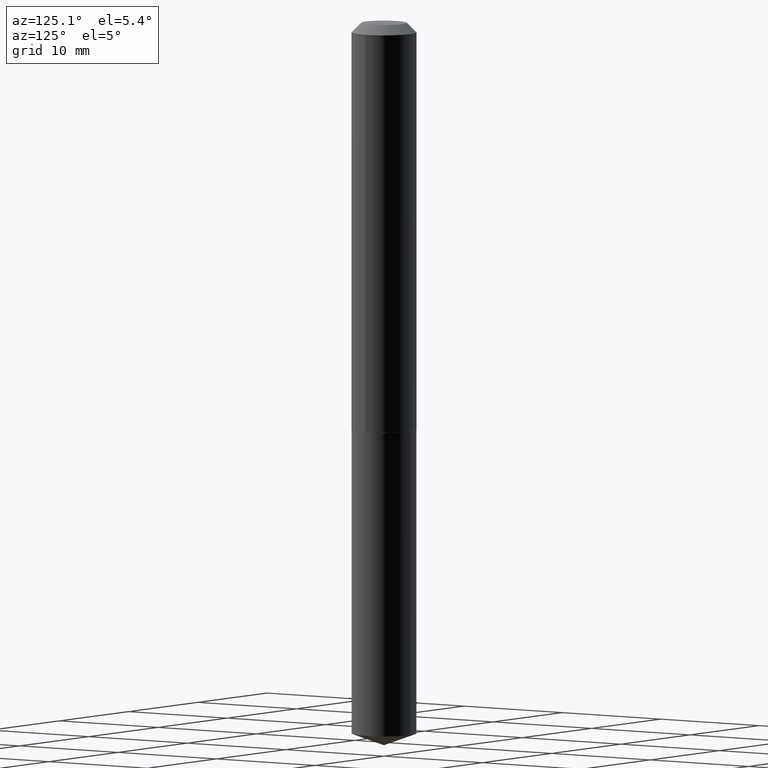
[diagram: clean part render]
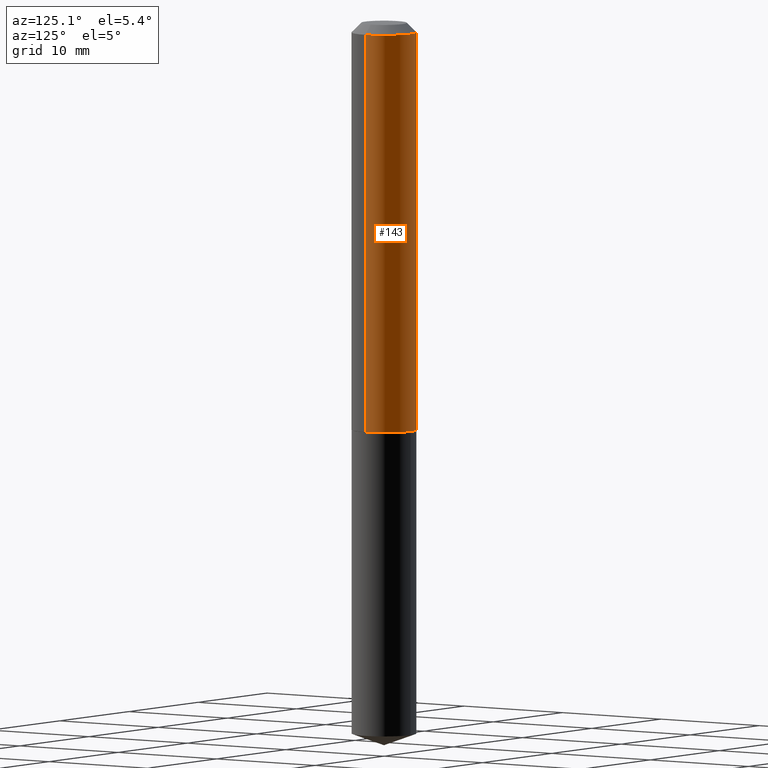
[diagram: same view with one face highlighted and labeled with its STEP entity id]
A machine part, auxiliary view. The second image highlights one B-rep face of the part: STEP entity #143.
In plain terms, the highlighted cylindrical surface (edge-blend (fillet) strip) has radius 2.7051 mm, axis along (-0, 0, 1).
Its self-contained STEP definition (entity closure, byte-faithful):
#23 = CARTESIAN_POINT ( 'NONE',  ( 3.270814528272620647E-29, -4.669856290702708218E-15, -1.337500000000000133 ) ) ;
#25 = DIRECTION ( 'NONE',  ( -2.445468806185136877E-29, 3.491481338843145188E-15, 1.000000000000000000 ) ) ;
#28 = DIRECTION ( 'NONE',  ( -2.445468806185136597E-29, 3.491481338843145583E-15, 1.000000000000000000 ) ) ;
#58 = CARTESIAN_POINT ( 'NONE',  ( 0.000000000000000000, 0.000000000000000000, 0.000000000000000000 ) ) ;
#59 = CARTESIAN_POINT ( 'NONE',  ( 7.642090019328602662E-31, -1.091087918388490267E-16, -0.03125000000000020817 ) ) ;
#61 = AXIS2_PLACEMENT_3D ( 'NONE', #58, #28, #89 ) ;
#66 = VECTOR ( 'NONE', #25, 39.37007874015748143 ) ;
#71 = VERTEX_POINT ( 'NONE', #292 ) ;
#89 = DIRECTION ( 'NONE',  ( 1.000000000000000000, -6.982962677686267499E-15, 4.876176775795935232E-29 ) ) ;
#90 = EDGE_CURVE ( 'NONE', #145, #361, #222, .T. ) ;
#101 = EDGE_CURVE ( 'NONE', #145, #306, #115, .T. ) ;
#111 = EDGE_CURVE ( 'NONE', #306, #71, #178, .T. ) ;
#115 = LINE ( 'NONE', #390, #212 ) ;
#116 = DIRECTION ( 'NONE',  ( -2.445468806185136597E-29, 3.491481338843145583E-15, 1.000000000000000000 ) ) ;
#117 = CARTESIAN_POINT ( 'NONE',  ( -0.1065000000000001640, -3.913128277118200453E-15, -1.337500000000000133 ) ) ;
#122 = ORIENTED_EDGE ( 'NONE', *, *, #111, .F. ) ;
#131 = ORIENTED_EDGE ( 'NONE', *, *, #101, .F. ) ;
#133 = ORIENTED_EDGE ( 'NONE', *, *, #90, .T. ) ;
#139 = FACE_OUTER_BOUND ( 'NONE', #149, .T. ) ;
#143 = ADVANCED_FACE ( 'NONE', ( #139 ), #266, .T. ) ;
#145 = VERTEX_POINT ( 'NONE', #271 ) ;
#149 = EDGE_LOOP ( 'NONE', ( #133, #211, #122, #131 ) ) ;
#167 = CARTESIAN_POINT ( 'NONE',  ( 0.1065000000000000113, -8.527943170124366394E-16, -0.03125000000000020817 ) ) ;
#178 = CIRCLE ( 'NONE', #320, 0.1065000000000000113 ) ;
#195 = LINE ( 'NONE', #296, #66 ) ;
#204 = DIRECTION ( 'NONE',  ( -2.445468806185136597E-29, 3.491481338843145583E-15, 1.000000000000000000 ) ) ;
#211 = ORIENTED_EDGE ( 'NONE', *, *, #336, .T. ) ;
#212 = VECTOR ( 'NONE', #359, 39.37007874015748143 ) ;
#222 = CIRCLE ( 'NONE', #341, 0.1065000000000001640 ) ;
#266 = CYLINDRICAL_SURFACE ( 'NONE', #61, 0.1065000000000000807 ) ;
#271 = CARTESIAN_POINT ( 'NONE',  ( 0.1065000000000001640, -5.413541815876296348E-15, -1.337500000000000133 ) ) ;
#292 = CARTESIAN_POINT ( 'NONE',  ( -0.1065000000000000113, -1.632754527686270697E-15, -0.03125000000000020817 ) ) ;
#296 = CARTESIAN_POINT ( 'NONE',  ( -0.1065000000000000807, 7.567280135845072715E-16, -5.238665871121478096E-30 ) ) ;
#306 = VERTEX_POINT ( 'NONE', #167 ) ;
#320 = AXIS2_PLACEMENT_3D ( 'NONE', #59, #116, #364 ) ;
#326 = DIRECTION ( 'NONE',  ( 1.000000000000000000, -6.982962677686262766E-15, 0.000000000000000000 ) ) ;
#336 = EDGE_CURVE ( 'NONE', #361, #71, #195, .T. ) ;
#341 = AXIS2_PLACEMENT_3D ( 'NONE', #23, #204, #326 ) ;
#359 = DIRECTION ( 'NONE',  ( -2.445468806185136877E-29, 3.491481338843145188E-15, 1.000000000000000000 ) ) ;
#361 = VERTEX_POINT ( 'NONE', #117 ) ;
#364 = DIRECTION ( 'NONE',  ( 1.000000000000000000, -6.982962677686267499E-15, 0.000000000000000000 ) ) ;
#390 = CARTESIAN_POINT ( 'NONE',  ( 0.1065000000000000807, -7.436855251735880318E-16, 5.193128266222675235E-30 ) ) ;